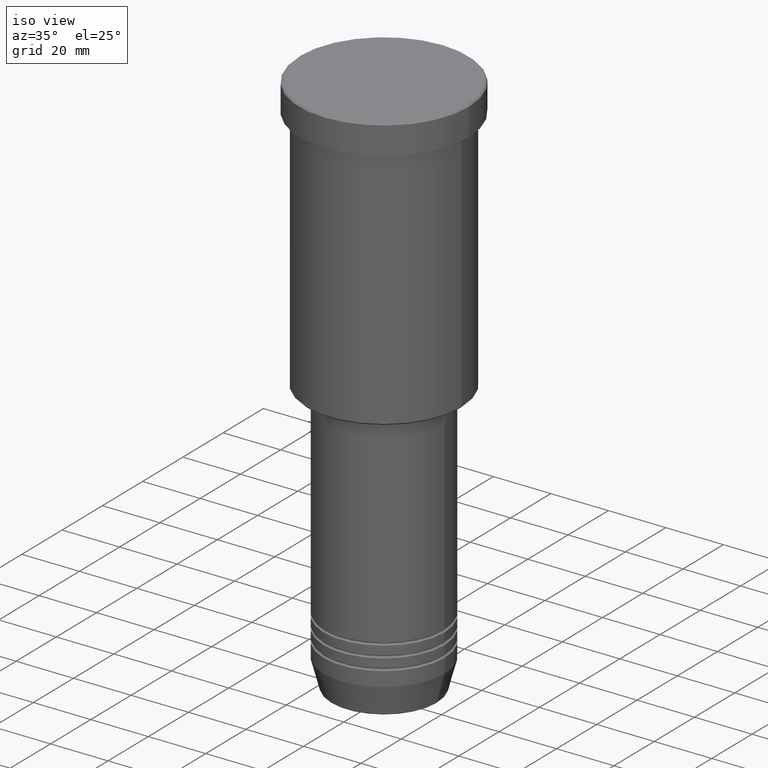
[diagram: clean part render]
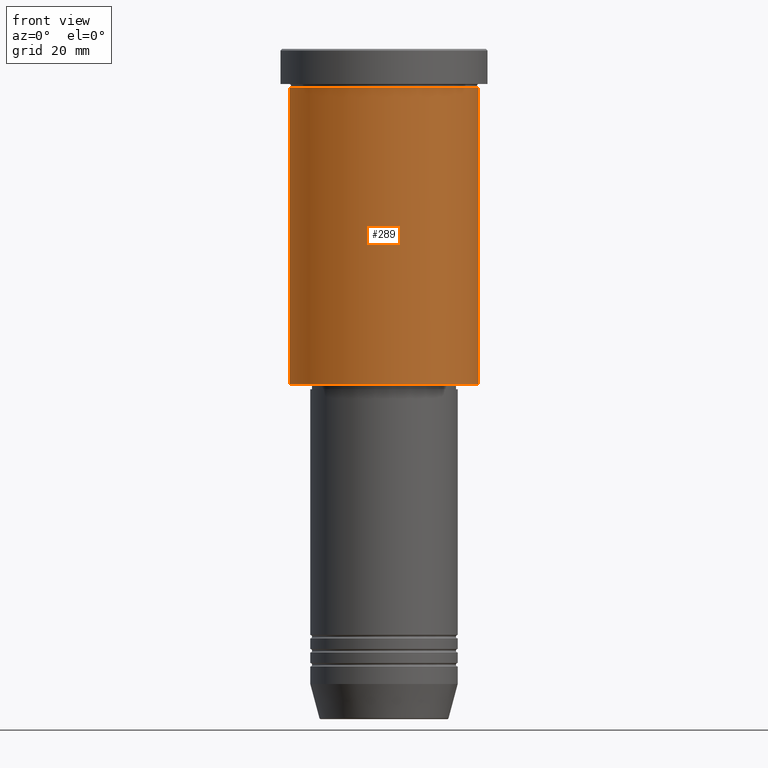
[diagram: tour spotlight — one face highlighted and labeled with its STEP entity id]
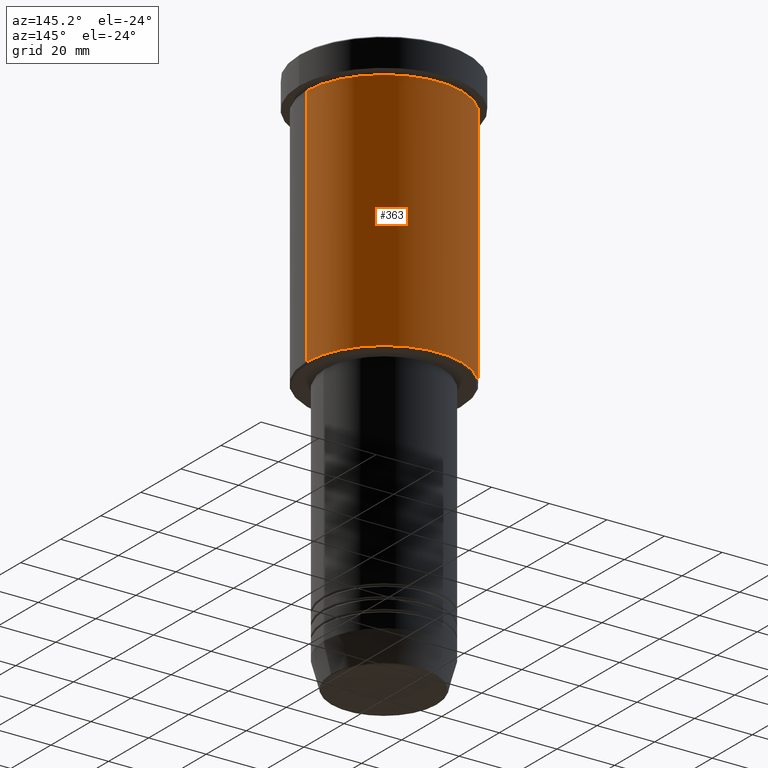
[diagram: tour spotlight — one face highlighted and labeled with its STEP entity id]
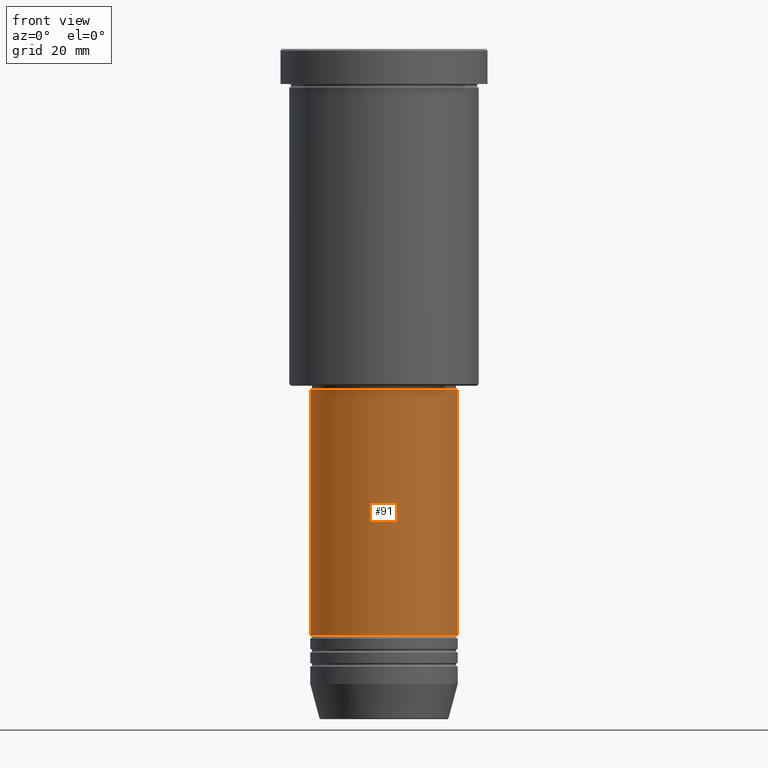
[diagram: tour spotlight — one face highlighted and labeled with its STEP entity id]
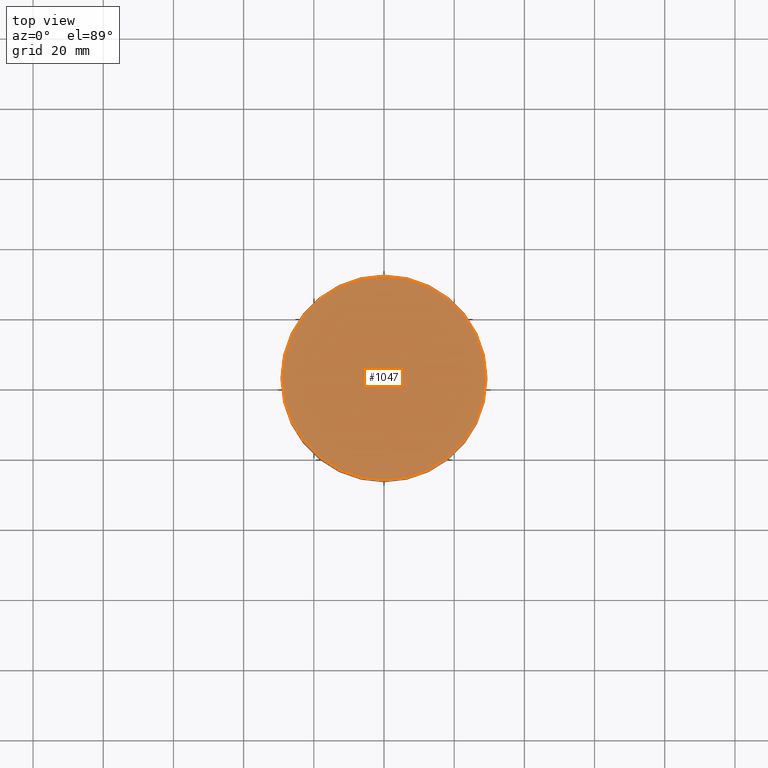
[diagram: tour spotlight — one face highlighted and labeled with its STEP entity id]
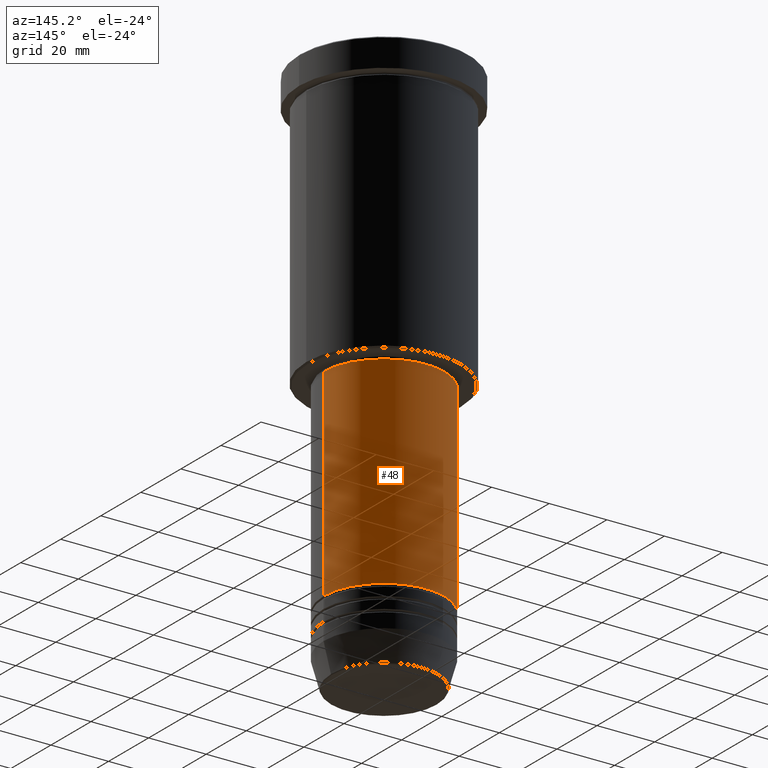
[diagram: tour spotlight — one face highlighted and labeled with its STEP entity id]
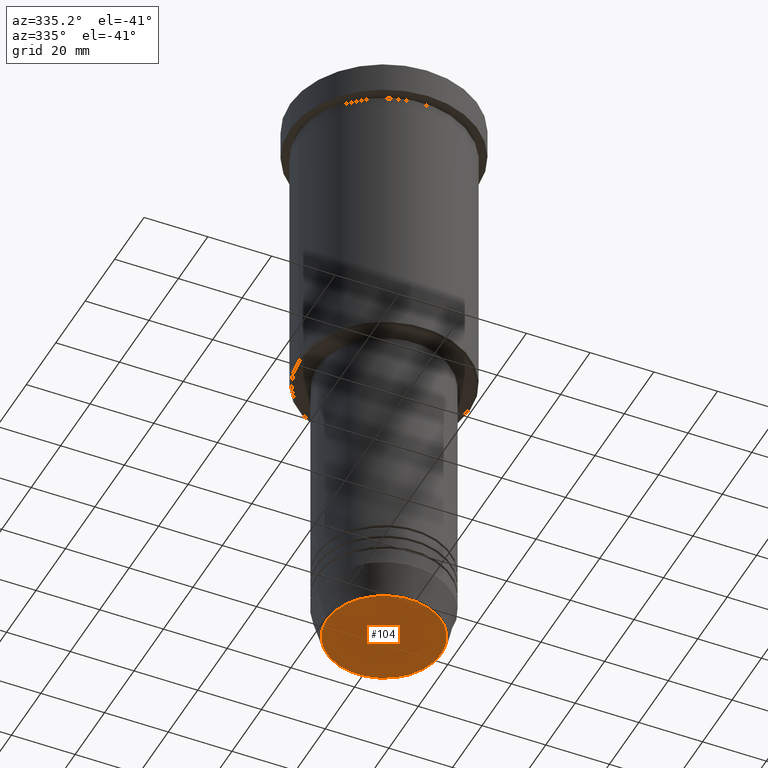
[diagram: tour spotlight — one face highlighted and labeled with its STEP entity id]
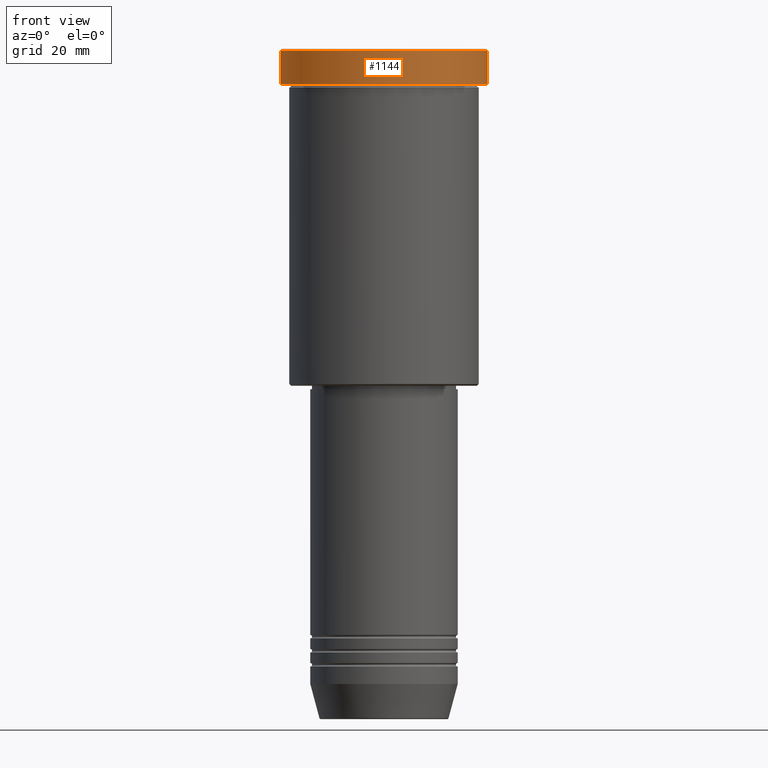
[diagram: tour spotlight — one face highlighted and labeled with its STEP entity id]
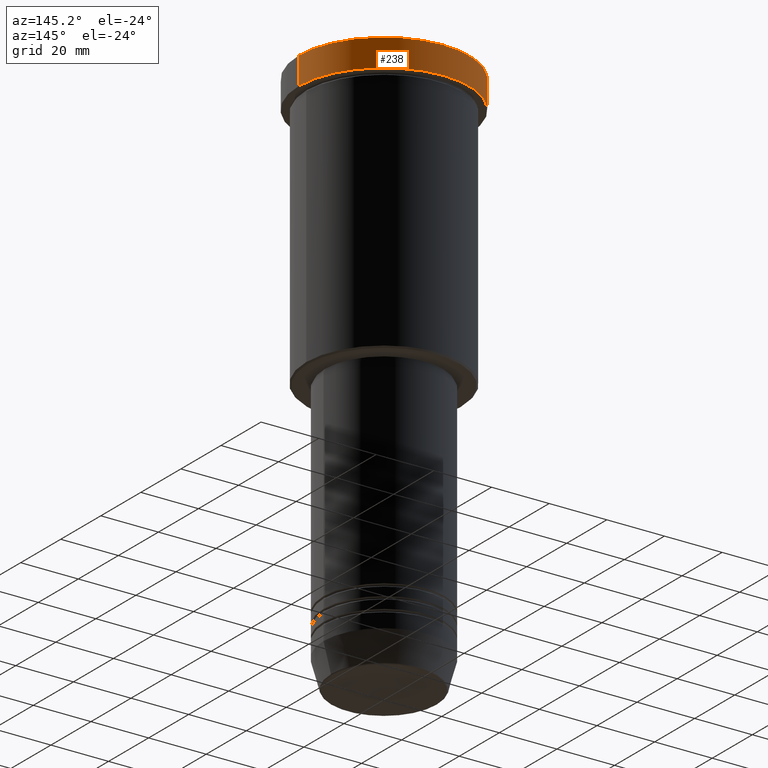
[diagram: tour spotlight — one face highlighted and labeled with its STEP entity id]
A machine part: a face-by-face anatomy tour. The part has 43 B-rep faces; the first image is the clean iso view, then the 8 largest visible faces are spotlighted one at a time (largest first), each with its STEP entity span.

Face 1 — front view, entity #289. In plain terms, the highlighted cylindrical surface (partial cylindrical patch) has radius 27 mm, axis along (-0, -0, 1).
Definition (entity closure, byte-faithful):
#4 = DIRECTION ( 'NONE',  ( -1.000000000000000000, 0.000000000000000000, 0.000000000000000000 ) ) ;
#70 = EDGE_CURVE ( 'NONE', #1087, #818, #435, .T. ) ;
#94 = CARTESIAN_POINT ( 'NONE',  ( 0.000000000000000000, 0.000000000000000000, 0.000000000000000000 ) ) ;
#122 = EDGE_CURVE ( 'NONE', #582, #818, #191, .T. ) ;
#191 = CIRCLE ( 'NONE', #343, 27.00000000000000355 ) ;
#224 = LINE ( 'NONE', #509, #548 ) ;
#247 = CARTESIAN_POINT ( 'NONE',  ( 27.00000000000000355, 0.000000000000000000, 0.000000000000000000 ) ) ;
#289 = ADVANCED_FACE ( 'NONE', ( #545 ), #907, .T. ) ;
#321 = ORIENTED_EDGE ( 'NONE', *, *, #122, .F. ) ;
#340 = CARTESIAN_POINT ( 'NONE',  ( -27.00000000000000355, 3.306546357697854128E-15, -95.49999999999998579 ) ) ;
#343 = AXIS2_PLACEMENT_3D ( 'NONE', #801, #451, #1161 ) ;
#394 = EDGE_CURVE ( 'NONE', #1082, #582, #224, .T. ) ;
#405 = VECTOR ( 'NONE', #518, 1000.000000000000000 ) ;
#435 = LINE ( 'NONE', #247, #405 ) ;
#450 = CARTESIAN_POINT ( 'NONE',  ( -27.00000000000000355, 3.306546357697854128E-15, -10.99999999999999289 ) ) ;
#451 = DIRECTION ( 'NONE',  ( -0.000000000000000000, -0.000000000000000000, 1.000000000000000000 ) ) ;
#485 = ORIENTED_EDGE ( 'NONE', *, *, #394, .F. ) ;
#509 = CARTESIAN_POINT ( 'NONE',  ( -27.00000000000000355, 3.306546357697854128E-15, 0.000000000000000000 ) ) ;
#518 = DIRECTION ( 'NONE',  ( -0.000000000000000000, -0.000000000000000000, 1.000000000000000000 ) ) ;
#545 = FACE_OUTER_BOUND ( 'NONE', #725, .T. ) ;
#548 = VECTOR ( 'NONE', #655, 1000.000000000000000 ) ;
#567 = CARTESIAN_POINT ( 'NONE',  ( 27.00000000000000355, 0.000000000000000000, -10.99999999999999289 ) ) ;
#582 = VERTEX_POINT ( 'NONE', #450 ) ;
#619 = AXIS2_PLACEMENT_3D ( 'NONE', #631, #1077, #4 ) ;
#622 = CIRCLE ( 'NONE', #619, 27.00000000000000355 ) ;
#631 = CARTESIAN_POINT ( 'NONE',  ( 0.000000000000000000, 0.000000000000000000, -95.49999999999998579 ) ) ;
#637 = CARTESIAN_POINT ( 'NONE',  ( 27.00000000000000355, 0.000000000000000000, -95.49999999999998579 ) ) ;
#640 = ORIENTED_EDGE ( 'NONE', *, *, #680, .T. ) ;
#655 = DIRECTION ( 'NONE',  ( -0.000000000000000000, -0.000000000000000000, 1.000000000000000000 ) ) ;
#677 = AXIS2_PLACEMENT_3D ( 'NONE', #94, #817, #1006 ) ;
#680 = EDGE_CURVE ( 'NONE', #1082, #1087, #622, .T. ) ;
#725 = EDGE_LOOP ( 'NONE', ( #485, #640, #1022, #321 ) ) ;
#801 = CARTESIAN_POINT ( 'NONE',  ( 0.000000000000000000, 0.000000000000000000, -10.99999999999999289 ) ) ;
#817 = DIRECTION ( 'NONE',  ( -0.000000000000000000, -0.000000000000000000, 1.000000000000000000 ) ) ;
#818 = VERTEX_POINT ( 'NONE', #567 ) ;
#907 = CYLINDRICAL_SURFACE ( 'NONE', #677, 27.00000000000000355 ) ;
#1006 = DIRECTION ( 'NONE',  ( 1.000000000000000000, 0.000000000000000000, 0.000000000000000000 ) ) ;
#1022 = ORIENTED_EDGE ( 'NONE', *, *, #70, .T. ) ;
#1077 = DIRECTION ( 'NONE',  ( -0.000000000000000000, -0.000000000000000000, 1.000000000000000000 ) ) ;
#1082 = VERTEX_POINT ( 'NONE', #340 ) ;
#1087 = VERTEX_POINT ( 'NONE', #637 ) ;
#1161 = DIRECTION ( 'NONE',  ( 1.000000000000000000, 0.000000000000000000, 0.000000000000000000 ) ) ;

Face 2 — auxiliary view, entity #363. In plain terms, the highlighted cylindrical surface (partial cylindrical patch) has radius 27 mm, axis along (-0, -0, 1).
Definition (entity closure, byte-faithful):
#70 = EDGE_CURVE ( 'NONE', #1087, #818, #435, .T. ) ;
#76 = CARTESIAN_POINT ( 'NONE',  ( 0.000000000000000000, 0.000000000000000000, -95.49999999999998579 ) ) ;
#79 = EDGE_CURVE ( 'NONE', #1087, #1082, #1060, .T. ) ;
#168 = ORIENTED_EDGE ( 'NONE', *, *, #394, .T. ) ;
#210 = CYLINDRICAL_SURFACE ( 'NONE', #1043, 27.00000000000000355 ) ;
#224 = LINE ( 'NONE', #509, #548 ) ;
#228 = CARTESIAN_POINT ( 'NONE',  ( 0.000000000000000000, 0.000000000000000000, 0.000000000000000000 ) ) ;
#247 = CARTESIAN_POINT ( 'NONE',  ( 27.00000000000000355, 0.000000000000000000, 0.000000000000000000 ) ) ;
#280 = ORIENTED_EDGE ( 'NONE', *, *, #79, .T. ) ;
#282 = CARTESIAN_POINT ( 'NONE',  ( 0.000000000000000000, 0.000000000000000000, -10.99999999999999289 ) ) ;
#298 = EDGE_LOOP ( 'NONE', ( #280, #168, #328, #420 ) ) ;
#299 = DIRECTION ( 'NONE',  ( 1.000000000000000000, 0.000000000000000000, 0.000000000000000000 ) ) ;
#328 = ORIENTED_EDGE ( 'NONE', *, *, #696, .F. ) ;
#340 = CARTESIAN_POINT ( 'NONE',  ( -27.00000000000000355, 3.306546357697854128E-15, -95.49999999999998579 ) ) ;
#363 = ADVANCED_FACE ( 'NONE', ( #575 ), #210, .T. ) ;
#394 = EDGE_CURVE ( 'NONE', #1082, #582, #224, .T. ) ;
#405 = VECTOR ( 'NONE', #518, 1000.000000000000000 ) ;
#420 = ORIENTED_EDGE ( 'NONE', *, *, #70, .F. ) ;
#435 = LINE ( 'NONE', #247, #405 ) ;
#450 = CARTESIAN_POINT ( 'NONE',  ( -27.00000000000000355, 3.306546357697854128E-15, -10.99999999999999289 ) ) ;
#509 = CARTESIAN_POINT ( 'NONE',  ( -27.00000000000000355, 3.306546357697854128E-15, 0.000000000000000000 ) ) ;
#518 = DIRECTION ( 'NONE',  ( -0.000000000000000000, -0.000000000000000000, 1.000000000000000000 ) ) ;
#548 = VECTOR ( 'NONE', #655, 1000.000000000000000 ) ;
#567 = CARTESIAN_POINT ( 'NONE',  ( 27.00000000000000355, 0.000000000000000000, -10.99999999999999289 ) ) ;
#575 = FACE_OUTER_BOUND ( 'NONE', #298, .T. ) ;
#582 = VERTEX_POINT ( 'NONE', #450 ) ;
#618 = DIRECTION ( 'NONE',  ( -0.000000000000000000, -0.000000000000000000, 1.000000000000000000 ) ) ;
#637 = CARTESIAN_POINT ( 'NONE',  ( 27.00000000000000355, 0.000000000000000000, -95.49999999999998579 ) ) ;
#645 = DIRECTION ( 'NONE',  ( -0.000000000000000000, -0.000000000000000000, 1.000000000000000000 ) ) ;
#655 = DIRECTION ( 'NONE',  ( -0.000000000000000000, -0.000000000000000000, 1.000000000000000000 ) ) ;
#678 = AXIS2_PLACEMENT_3D ( 'NONE', #282, #645, #1169 ) ;
#696 = EDGE_CURVE ( 'NONE', #818, #582, #870, .T. ) ;
#818 = VERTEX_POINT ( 'NONE', #567 ) ;
#870 = CIRCLE ( 'NONE', #678, 27.00000000000000355 ) ;
#957 = DIRECTION ( 'NONE',  ( -0.000000000000000000, -0.000000000000000000, 1.000000000000000000 ) ) ;
#1043 = AXIS2_PLACEMENT_3D ( 'NONE', #228, #957, #299 ) ;
#1060 = CIRCLE ( 'NONE', #1135, 27.00000000000000355 ) ;
#1074 = DIRECTION ( 'NONE',  ( -1.000000000000000000, 0.000000000000000000, 0.000000000000000000 ) ) ;
#1082 = VERTEX_POINT ( 'NONE', #340 ) ;
#1087 = VERTEX_POINT ( 'NONE', #637 ) ;
#1135 = AXIS2_PLACEMENT_3D ( 'NONE', #76, #618, #1074 ) ;
#1169 = DIRECTION ( 'NONE',  ( 1.000000000000000000, 0.000000000000000000, 0.000000000000000000 ) ) ;

Face 3 — front view, entity #91. In plain terms, the highlighted cylindrical surface (partial cylindrical patch) has radius 21 mm, axis along (-0, -0, 1).
Definition (entity closure, byte-faithful):
#20 = ORIENTED_EDGE ( 'NONE', *, *, #520, .F. ) ;
#25 = VERTEX_POINT ( 'NONE', #176 ) ;
#29 = AXIS2_PLACEMENT_3D ( 'NONE', #530, #1069, #537 ) ;
#71 = VERTEX_POINT ( 'NONE', #874 ) ;
#91 = ADVANCED_FACE ( 'NONE', ( #454 ), #780, .T. ) ;
#176 = CARTESIAN_POINT ( 'NONE',  ( -20.99999999999999645, 2.571758278209441267E-15, -97.00000000000002842 ) ) ;
#181 = DIRECTION ( 'NONE',  ( -0.000000000000000000, -0.000000000000000000, 1.000000000000000000 ) ) ;
#200 = ORIENTED_EDGE ( 'NONE', *, *, #1059, .T. ) ;
#271 = LINE ( 'NONE', #362, #786 ) ;
#275 = VERTEX_POINT ( 'NONE', #999 ) ;
#295 = DIRECTION ( 'NONE',  ( -0.000000000000000000, -0.000000000000000000, 1.000000000000000000 ) ) ;
#308 = CIRCLE ( 'NONE', #409, 21.00000000000000000 ) ;
#362 = CARTESIAN_POINT ( 'NONE',  ( 20.99999999999999645, 0.000000000000000000, 0.000000000000000000 ) ) ;
#409 = AXIS2_PLACEMENT_3D ( 'NONE', #1126, #181, #905 ) ;
#426 = CARTESIAN_POINT ( 'NONE',  ( 0.000000000000000000, 0.000000000000000000, -97.00000000000002842 ) ) ;
#427 = CIRCLE ( 'NONE', #869, 20.99999999999999645 ) ;
#448 = VECTOR ( 'NONE', #295, 1000.000000000000000 ) ;
#454 = FACE_OUTER_BOUND ( 'NONE', #1116, .T. ) ;
#470 = CARTESIAN_POINT ( 'NONE',  ( -20.99999999999999645, 2.571758278209441267E-15, 0.000000000000000000 ) ) ;
#488 = CARTESIAN_POINT ( 'NONE',  ( 20.99999999999999645, 0.000000000000000000, -97.00000000000002842 ) ) ;
#520 = EDGE_CURVE ( 'NONE', #25, #842, #427, .T. ) ;
#530 = CARTESIAN_POINT ( 'NONE',  ( 0.000000000000000000, 0.000000000000000000, 0.000000000000000000 ) ) ;
#537 = DIRECTION ( 'NONE',  ( 1.000000000000000000, 0.000000000000000000, 0.000000000000000000 ) ) ;
#556 = DIRECTION ( 'NONE',  ( -0.000000000000000000, -0.000000000000000000, 1.000000000000000000 ) ) ;
#612 = EDGE_CURVE ( 'NONE', #275, #25, #704, .T. ) ;
#614 = DIRECTION ( 'NONE',  ( -0.000000000000000000, -0.000000000000000000, 1.000000000000000000 ) ) ;
#704 = LINE ( 'NONE', #470, #448 ) ;
#730 = EDGE_CURVE ( 'NONE', #71, #842, #271, .T. ) ;
#780 = CYLINDRICAL_SURFACE ( 'NONE', #29, 20.99999999999999645 ) ;
#786 = VECTOR ( 'NONE', #556, 1000.000000000000000 ) ;
#842 = VERTEX_POINT ( 'NONE', #488 ) ;
#869 = AXIS2_PLACEMENT_3D ( 'NONE', #426, #614, #1052 ) ;
#874 = CARTESIAN_POINT ( 'NONE',  ( 21.00000000000000000, 0.000000000000000000, -166.9999999999998863 ) ) ;
#905 = DIRECTION ( 'NONE',  ( 1.000000000000000000, 0.000000000000000000, 0.000000000000000000 ) ) ;
#999 = CARTESIAN_POINT ( 'NONE',  ( -21.00000000000000000, 2.571758278209441661E-15, -166.9999999999998863 ) ) ;
#1021 = ORIENTED_EDGE ( 'NONE', *, *, #730, .T. ) ;
#1052 = DIRECTION ( 'NONE',  ( 1.000000000000000000, 0.000000000000000000, 0.000000000000000000 ) ) ;
#1059 = EDGE_CURVE ( 'NONE', #275, #71, #308, .T. ) ;
#1069 = DIRECTION ( 'NONE',  ( -0.000000000000000000, -0.000000000000000000, 1.000000000000000000 ) ) ;
#1116 = EDGE_LOOP ( 'NONE', ( #1179, #200, #1021, #20 ) ) ;
#1126 = CARTESIAN_POINT ( 'NONE',  ( 0.000000000000000000, 0.000000000000000000, -166.9999999999998863 ) ) ;
#1179 = ORIENTED_EDGE ( 'NONE', *, *, #612, .F. ) ;

Face 4 — top view, entity #1047. In plain terms, the highlighted planar face has unit normal (0, -0, 1).
Definition (entity closure, byte-faithful):
#126 = CARTESIAN_POINT ( 'NONE',  ( -28.99999999999999645, 0.000000000000000000, 0.000000000000000000 ) ) ;
#143 = DIRECTION ( 'NONE',  ( -0.000000000000000000, -0.000000000000000000, 1.000000000000000000 ) ) ;
#209 = AXIS2_PLACEMENT_3D ( 'NONE', #665, #1107, #949 ) ;
#217 = CARTESIAN_POINT ( 'NONE',  ( 0.000000000000000000, 0.000000000000000000, 0.000000000000000000 ) ) ;
#312 = CARTESIAN_POINT ( 'NONE',  ( 0.000000000000000000, 0.000000000000000000, 0.000000000000000000 ) ) ;
#357 = EDGE_LOOP ( 'NONE', ( #843, #710 ) ) ;
#384 = EDGE_CURVE ( 'NONE', #1053, #683, #947, .T. ) ;
#428 = CIRCLE ( 'NONE', #209, 28.99999999999999645 ) ;
#499 = AXIS2_PLACEMENT_3D ( 'NONE', #312, #663, #940 ) ;
#663 = DIRECTION ( 'NONE',  ( 0.000000000000000000, -0.000000000000000000, 1.000000000000000000 ) ) ;
#665 = CARTESIAN_POINT ( 'NONE',  ( 0.000000000000000000, 0.000000000000000000, 0.000000000000000000 ) ) ;
#683 = VERTEX_POINT ( 'NONE', #1174 ) ;
#710 = ORIENTED_EDGE ( 'NONE', *, *, #753, .T. ) ;
#744 = FACE_OUTER_BOUND ( 'NONE', #357, .T. ) ;
#753 = EDGE_CURVE ( 'NONE', #683, #1053, #428, .T. ) ;
#843 = ORIENTED_EDGE ( 'NONE', *, *, #384, .T. ) ;
#937 = DIRECTION ( 'NONE',  ( 1.000000000000000000, 0.000000000000000000, 0.000000000000000000 ) ) ;
#940 = DIRECTION ( 'NONE',  ( 1.000000000000000000, 0.000000000000000000, 0.000000000000000000 ) ) ;
#947 = CIRCLE ( 'NONE', #1137, 28.99999999999999645 ) ;
#949 = DIRECTION ( 'NONE',  ( 1.000000000000000000, 0.000000000000000000, 0.000000000000000000 ) ) ;
#1047 = ADVANCED_FACE ( 'NONE', ( #744 ), #1119, .T. ) ;
#1053 = VERTEX_POINT ( 'NONE', #126 ) ;
#1107 = DIRECTION ( 'NONE',  ( -0.000000000000000000, -0.000000000000000000, 1.000000000000000000 ) ) ;
#1119 = PLANE ( 'NONE',  #499 ) ;
#1137 = AXIS2_PLACEMENT_3D ( 'NONE', #217, #143, #937 ) ;
#1174 = CARTESIAN_POINT ( 'NONE',  ( 28.99999999999999645, 3.582091887506007817E-15, 0.000000000000000000 ) ) ;

Face 5 — auxiliary view, entity #48. In plain terms, the highlighted cylindrical surface (partial cylindrical patch) has radius 21 mm, axis along (-0, -0, 1).
Definition (entity closure, byte-faithful):
#25 = VERTEX_POINT ( 'NONE', #176 ) ;
#42 = DIRECTION ( 'NONE',  ( 1.000000000000000000, 0.000000000000000000, 0.000000000000000000 ) ) ;
#48 = ADVANCED_FACE ( 'NONE', ( #1164 ), #698, .T. ) ;
#69 = CARTESIAN_POINT ( 'NONE',  ( 0.000000000000000000, 0.000000000000000000, 0.000000000000000000 ) ) ;
#71 = VERTEX_POINT ( 'NONE', #874 ) ;
#103 = ORIENTED_EDGE ( 'NONE', *, *, #990, .T. ) ;
#120 = DIRECTION ( 'NONE',  ( 1.000000000000000000, 0.000000000000000000, 0.000000000000000000 ) ) ;
#124 = ORIENTED_EDGE ( 'NONE', *, *, #730, .F. ) ;
#133 = EDGE_LOOP ( 'NONE', ( #103, #1110, #178, #124 ) ) ;
#151 = DIRECTION ( 'NONE',  ( 1.000000000000000000, 0.000000000000000000, 0.000000000000000000 ) ) ;
#176 = CARTESIAN_POINT ( 'NONE',  ( -20.99999999999999645, 2.571758278209441267E-15, -97.00000000000002842 ) ) ;
#178 = ORIENTED_EDGE ( 'NONE', *, *, #1162, .F. ) ;
#271 = LINE ( 'NONE', #362, #786 ) ;
#275 = VERTEX_POINT ( 'NONE', #999 ) ;
#295 = DIRECTION ( 'NONE',  ( -0.000000000000000000, -0.000000000000000000, 1.000000000000000000 ) ) ;
#362 = CARTESIAN_POINT ( 'NONE',  ( 20.99999999999999645, 0.000000000000000000, 0.000000000000000000 ) ) ;
#385 = AXIS2_PLACEMENT_3D ( 'NONE', #69, #445, #151 ) ;
#389 = AXIS2_PLACEMENT_3D ( 'NONE', #934, #676, #120 ) ;
#430 = AXIS2_PLACEMENT_3D ( 'NONE', #860, #1152, #42 ) ;
#445 = DIRECTION ( 'NONE',  ( -0.000000000000000000, -0.000000000000000000, 1.000000000000000000 ) ) ;
#448 = VECTOR ( 'NONE', #295, 1000.000000000000000 ) ;
#470 = CARTESIAN_POINT ( 'NONE',  ( -20.99999999999999645, 2.571758278209441267E-15, 0.000000000000000000 ) ) ;
#488 = CARTESIAN_POINT ( 'NONE',  ( 20.99999999999999645, 0.000000000000000000, -97.00000000000002842 ) ) ;
#551 = CIRCLE ( 'NONE', #389, 21.00000000000000000 ) ;
#556 = DIRECTION ( 'NONE',  ( -0.000000000000000000, -0.000000000000000000, 1.000000000000000000 ) ) ;
#612 = EDGE_CURVE ( 'NONE', #275, #25, #704, .T. ) ;
#676 = DIRECTION ( 'NONE',  ( -0.000000000000000000, -0.000000000000000000, 1.000000000000000000 ) ) ;
#698 = CYLINDRICAL_SURFACE ( 'NONE', #385, 20.99999999999999645 ) ;
#704 = LINE ( 'NONE', #470, #448 ) ;
#729 = CIRCLE ( 'NONE', #430, 20.99999999999999645 ) ;
#730 = EDGE_CURVE ( 'NONE', #71, #842, #271, .T. ) ;
#786 = VECTOR ( 'NONE', #556, 1000.000000000000000 ) ;
#842 = VERTEX_POINT ( 'NONE', #488 ) ;
#860 = CARTESIAN_POINT ( 'NONE',  ( 0.000000000000000000, 0.000000000000000000, -97.00000000000002842 ) ) ;
#874 = CARTESIAN_POINT ( 'NONE',  ( 21.00000000000000000, 0.000000000000000000, -166.9999999999998863 ) ) ;
#934 = CARTESIAN_POINT ( 'NONE',  ( 0.000000000000000000, 0.000000000000000000, -166.9999999999998863 ) ) ;
#990 = EDGE_CURVE ( 'NONE', #71, #275, #551, .T. ) ;
#999 = CARTESIAN_POINT ( 'NONE',  ( -21.00000000000000000, 2.571758278209441661E-15, -166.9999999999998863 ) ) ;
#1110 = ORIENTED_EDGE ( 'NONE', *, *, #612, .T. ) ;
#1152 = DIRECTION ( 'NONE',  ( -0.000000000000000000, -0.000000000000000000, 1.000000000000000000 ) ) ;
#1162 = EDGE_CURVE ( 'NONE', #842, #25, #729, .T. ) ;
#1164 = FACE_OUTER_BOUND ( 'NONE', #133, .T. ) ;

Face 6 — auxiliary view, entity #104. In plain terms, the highlighted planar face has unit normal (0, -0, 1).
Definition (entity closure, byte-faithful):
#7 = EDGE_CURVE ( 'NONE', #64, #532, #304, .T. ) ;
#64 = VERTEX_POINT ( 'NONE', #775 ) ;
#90 = AXIS2_PLACEMENT_3D ( 'NONE', #1103, #800, #903 ) ;
#100 = ORIENTED_EDGE ( 'NONE', *, *, #7, .T. ) ;
#104 = ADVANCED_FACE ( 'NONE', ( #338 ), #162, .F. ) ;
#162 = PLANE ( 'NONE',  #206 ) ;
#206 = AXIS2_PLACEMENT_3D ( 'NONE', #690, #613, #1057 ) ;
#291 = CIRCLE ( 'NONE', #90, 17.93684458169929030 ) ;
#300 = EDGE_LOOP ( 'NONE', ( #794, #100 ) ) ;
#304 = CIRCLE ( 'NONE', #326, 17.93684458169929030 ) ;
#326 = AXIS2_PLACEMENT_3D ( 'NONE', #525, #890, #707 ) ;
#338 = FACE_OUTER_BOUND ( 'NONE', #300, .T. ) ;
#525 = CARTESIAN_POINT ( 'NONE',  ( 0.000000000000000000, 0.000000000000000000, -191.0000000000000000 ) ) ;
#532 = VERTEX_POINT ( 'NONE', #1147 ) ;
#603 = EDGE_CURVE ( 'NONE', #532, #64, #291, .T. ) ;
#613 = DIRECTION ( 'NONE',  ( 0.000000000000000000, -0.000000000000000000, 1.000000000000000000 ) ) ;
#690 = CARTESIAN_POINT ( 'NONE',  ( 0.000000000000000000, 0.000000000000000000, -191.0000000000000000 ) ) ;
#707 = DIRECTION ( 'NONE',  ( 1.000000000000000000, 0.000000000000000000, 0.000000000000000000 ) ) ;
#775 = CARTESIAN_POINT ( 'NONE',  ( -17.93684458169929030, 2.226202879662624346E-15, -191.0000000000000000 ) ) ;
#794 = ORIENTED_EDGE ( 'NONE', *, *, #603, .T. ) ;
#800 = DIRECTION ( 'NONE',  ( 0.000000000000000000, 0.000000000000000000, -1.000000000000000000 ) ) ;
#890 = DIRECTION ( 'NONE',  ( 0.000000000000000000, 0.000000000000000000, -1.000000000000000000 ) ) ;
#903 = DIRECTION ( 'NONE',  ( 1.000000000000000000, 0.000000000000000000, 0.000000000000000000 ) ) ;
#1057 = DIRECTION ( 'NONE',  ( 1.000000000000000000, 0.000000000000000000, 0.000000000000000000 ) ) ;
#1103 = CARTESIAN_POINT ( 'NONE',  ( 0.000000000000000000, 0.000000000000000000, -191.0000000000000000 ) ) ;
#1147 = CARTESIAN_POINT ( 'NONE',  ( 17.93684458169929030, 0.000000000000000000, -191.0000000000000000 ) ) ;

Face 7 — front view, entity #1144. In plain terms, the highlighted cylindrical surface (partial cylindrical patch) has radius 29.5 mm, axis along (-0, -0, 1).
Definition (entity closure, byte-faithful):
#46 = CARTESIAN_POINT ( 'NONE',  ( 29.50000000000000000, 0.000000000000000000, -9.999999999999992895 ) ) ;
#54 = CYLINDRICAL_SURFACE ( 'NONE', #55, 29.50000000000000000 ) ;
#55 = AXIS2_PLACEMENT_3D ( 'NONE', #1150, #1058, #913 ) ;
#81 = EDGE_LOOP ( 'NONE', ( #145, #1040, #652, #352 ) ) ;
#105 = CARTESIAN_POINT ( 'NONE',  ( -29.50000000000000000, 3.612708057484691604E-15, -0.4999999999999726885 ) ) ;
#121 = DIRECTION ( 'NONE',  ( 1.000000000000000000, 0.000000000000000000, 0.000000000000000000 ) ) ;
#145 = ORIENTED_EDGE ( 'NONE', *, *, #973, .F. ) ;
#171 = VECTOR ( 'NONE', #383, 1000.000000000000000 ) ;
#214 = CARTESIAN_POINT ( 'NONE',  ( -29.50000000000000000, 3.612708057484691604E-15, 0.000000000000000000 ) ) ;
#261 = DIRECTION ( 'NONE',  ( -0.000000000000000000, -0.000000000000000000, 1.000000000000000000 ) ) ;
#322 = CARTESIAN_POINT ( 'NONE',  ( 29.50000000000000000, 0.000000000000000000, -0.4999999999999726885 ) ) ;
#334 = DIRECTION ( 'NONE',  ( 1.000000000000000000, 0.000000000000000000, 0.000000000000000000 ) ) ;
#350 = CARTESIAN_POINT ( 'NONE',  ( 0.000000000000000000, 0.000000000000000000, -9.999999999999992895 ) ) ;
#352 = ORIENTED_EDGE ( 'NONE', *, *, #840, .T. ) ;
#383 = DIRECTION ( 'NONE',  ( -0.000000000000000000, -0.000000000000000000, 1.000000000000000000 ) ) ;
#399 = CARTESIAN_POINT ( 'NONE',  ( 0.000000000000000000, 0.000000000000000000, -0.4999999999999726885 ) ) ;
#406 = LINE ( 'NONE', #747, #171 ) ;
#416 = DIRECTION ( 'NONE',  ( -0.000000000000000000, -0.000000000000000000, 1.000000000000000000 ) ) ;
#468 = EDGE_CURVE ( 'NONE', #1145, #1013, #586, .T. ) ;
#511 = FACE_OUTER_BOUND ( 'NONE', #81, .T. ) ;
#586 = CIRCLE ( 'NONE', #745, 29.50000000000000000 ) ;
#652 = ORIENTED_EDGE ( 'NONE', *, *, #847, .T. ) ;
#739 = DIRECTION ( 'NONE',  ( 0.000000000000000000, 0.000000000000000000, -1.000000000000000000 ) ) ;
#745 = AXIS2_PLACEMENT_3D ( 'NONE', #350, #261, #334 ) ;
#747 = CARTESIAN_POINT ( 'NONE',  ( 29.50000000000000000, 0.000000000000000000, 0.000000000000000000 ) ) ;
#756 = CARTESIAN_POINT ( 'NONE',  ( -29.50000000000000000, 3.612708057484691604E-15, -9.999999999999992895 ) ) ;
#810 = CIRCLE ( 'NONE', #1157, 29.50000000000000000 ) ;
#840 = EDGE_CURVE ( 'NONE', #975, #891, #810, .T. ) ;
#847 = EDGE_CURVE ( 'NONE', #1013, #975, #406, .T. ) ;
#864 = LINE ( 'NONE', #214, #1063 ) ;
#891 = VERTEX_POINT ( 'NONE', #105 ) ;
#913 = DIRECTION ( 'NONE',  ( 1.000000000000000000, 0.000000000000000000, 0.000000000000000000 ) ) ;
#973 = EDGE_CURVE ( 'NONE', #1145, #891, #864, .T. ) ;
#975 = VERTEX_POINT ( 'NONE', #322 ) ;
#1013 = VERTEX_POINT ( 'NONE', #46 ) ;
#1040 = ORIENTED_EDGE ( 'NONE', *, *, #468, .T. ) ;
#1058 = DIRECTION ( 'NONE',  ( -0.000000000000000000, -0.000000000000000000, 1.000000000000000000 ) ) ;
#1063 = VECTOR ( 'NONE', #416, 1000.000000000000000 ) ;
#1144 = ADVANCED_FACE ( 'NONE', ( #511 ), #54, .T. ) ;
#1145 = VERTEX_POINT ( 'NONE', #756 ) ;
#1150 = CARTESIAN_POINT ( 'NONE',  ( 0.000000000000000000, 0.000000000000000000, 0.000000000000000000 ) ) ;
#1157 = AXIS2_PLACEMENT_3D ( 'NONE', #399, #739, #121 ) ;

Face 8 — auxiliary view, entity #238. In plain terms, the highlighted cylindrical surface (partial cylindrical patch) has radius 29.5 mm, axis along (-0, -0, 1).
Definition (entity closure, byte-faithful):
#15 = CARTESIAN_POINT ( 'NONE',  ( 0.000000000000000000, 0.000000000000000000, -9.999999999999992895 ) ) ;
#41 = EDGE_CURVE ( 'NONE', #891, #975, #457, .T. ) ;
#46 = CARTESIAN_POINT ( 'NONE',  ( 29.50000000000000000, 0.000000000000000000, -9.999999999999992895 ) ) ;
#85 = DIRECTION ( 'NONE',  ( 1.000000000000000000, 0.000000000000000000, 0.000000000000000000 ) ) ;
#105 = CARTESIAN_POINT ( 'NONE',  ( -29.50000000000000000, 3.612708057484691604E-15, -0.4999999999999726885 ) ) ;
#158 = DIRECTION ( 'NONE',  ( 1.000000000000000000, 0.000000000000000000, 0.000000000000000000 ) ) ;
#171 = VECTOR ( 'NONE', #383, 1000.000000000000000 ) ;
#214 = CARTESIAN_POINT ( 'NONE',  ( -29.50000000000000000, 3.612708057484691604E-15, 0.000000000000000000 ) ) ;
#234 = CIRCLE ( 'NONE', #270, 29.50000000000000000 ) ;
#238 = ADVANCED_FACE ( 'NONE', ( #372 ), #646, .T. ) ;
#270 = AXIS2_PLACEMENT_3D ( 'NONE', #15, #555, #917 ) ;
#284 = CARTESIAN_POINT ( 'NONE',  ( 0.000000000000000000, 0.000000000000000000, 0.000000000000000000 ) ) ;
#322 = CARTESIAN_POINT ( 'NONE',  ( 29.50000000000000000, 0.000000000000000000, -0.4999999999999726885 ) ) ;
#372 = FACE_OUTER_BOUND ( 'NONE', #669, .T. ) ;
#373 = ORIENTED_EDGE ( 'NONE', *, *, #41, .T. ) ;
#383 = DIRECTION ( 'NONE',  ( -0.000000000000000000, -0.000000000000000000, 1.000000000000000000 ) ) ;
#406 = LINE ( 'NONE', #747, #171 ) ;
#416 = DIRECTION ( 'NONE',  ( -0.000000000000000000, -0.000000000000000000, 1.000000000000000000 ) ) ;
#457 = CIRCLE ( 'NONE', #604, 29.50000000000000000 ) ;
#555 = DIRECTION ( 'NONE',  ( -0.000000000000000000, -0.000000000000000000, 1.000000000000000000 ) ) ;
#585 = AXIS2_PLACEMENT_3D ( 'NONE', #284, #1016, #85 ) ;
#604 = AXIS2_PLACEMENT_3D ( 'NONE', #1066, #964, #158 ) ;
#646 = CYLINDRICAL_SURFACE ( 'NONE', #585, 29.50000000000000000 ) ;
#669 = EDGE_LOOP ( 'NONE', ( #1033, #886, #373, #1117 ) ) ;
#747 = CARTESIAN_POINT ( 'NONE',  ( 29.50000000000000000, 0.000000000000000000, 0.000000000000000000 ) ) ;
#756 = CARTESIAN_POINT ( 'NONE',  ( -29.50000000000000000, 3.612708057484691604E-15, -9.999999999999992895 ) ) ;
#847 = EDGE_CURVE ( 'NONE', #1013, #975, #406, .T. ) ;
#864 = LINE ( 'NONE', #214, #1063 ) ;
#886 = ORIENTED_EDGE ( 'NONE', *, *, #973, .T. ) ;
#891 = VERTEX_POINT ( 'NONE', #105 ) ;
#917 = DIRECTION ( 'NONE',  ( 1.000000000000000000, 0.000000000000000000, 0.000000000000000000 ) ) ;
#954 = EDGE_CURVE ( 'NONE', #1013, #1145, #234, .T. ) ;
#964 = DIRECTION ( 'NONE',  ( 0.000000000000000000, 0.000000000000000000, -1.000000000000000000 ) ) ;
#973 = EDGE_CURVE ( 'NONE', #1145, #891, #864, .T. ) ;
#975 = VERTEX_POINT ( 'NONE', #322 ) ;
#1013 = VERTEX_POINT ( 'NONE', #46 ) ;
#1016 = DIRECTION ( 'NONE',  ( -0.000000000000000000, -0.000000000000000000, 1.000000000000000000 ) ) ;
#1033 = ORIENTED_EDGE ( 'NONE', *, *, #954, .T. ) ;
#1063 = VECTOR ( 'NONE', #416, 1000.000000000000000 ) ;
#1066 = CARTESIAN_POINT ( 'NONE',  ( 0.000000000000000000, 0.000000000000000000, -0.4999999999999726885 ) ) ;
#1117 = ORIENTED_EDGE ( 'NONE', *, *, #847, .F. ) ;
#1145 = VERTEX_POINT ( 'NONE', #756 ) ;